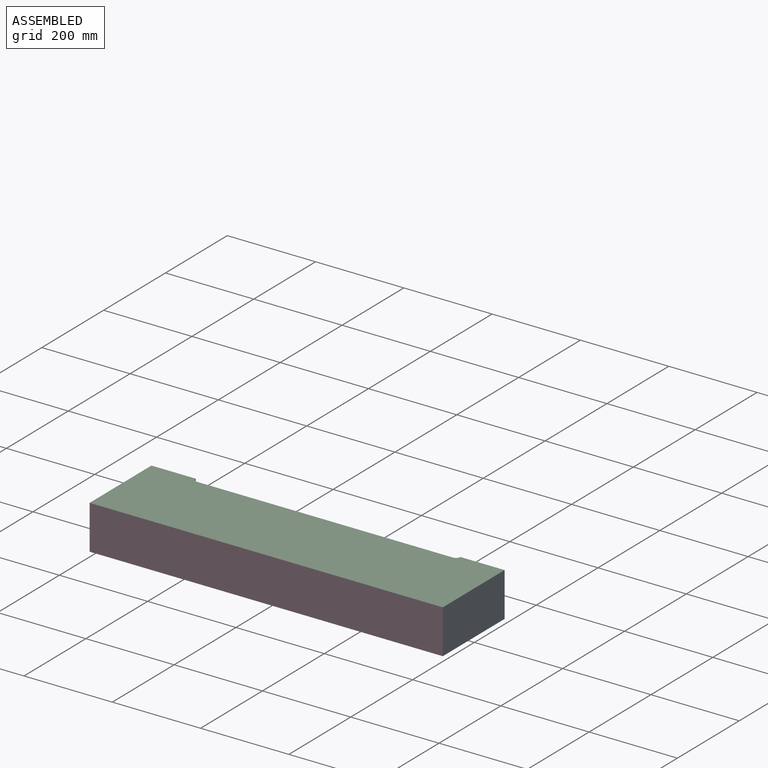
[diagram: assembled view]
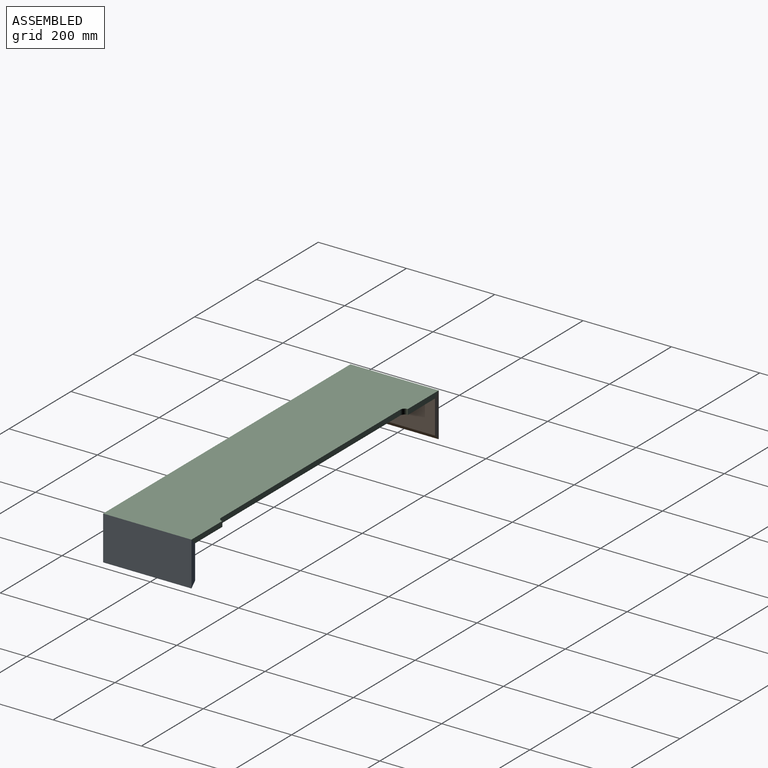
[diagram: assembled view, second angle]
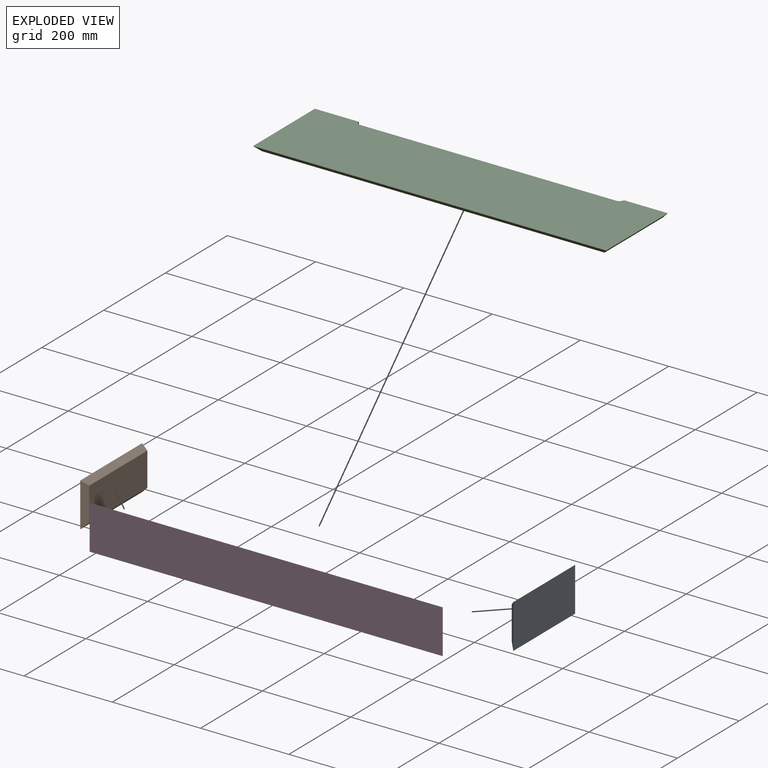
[diagram: exploded view]
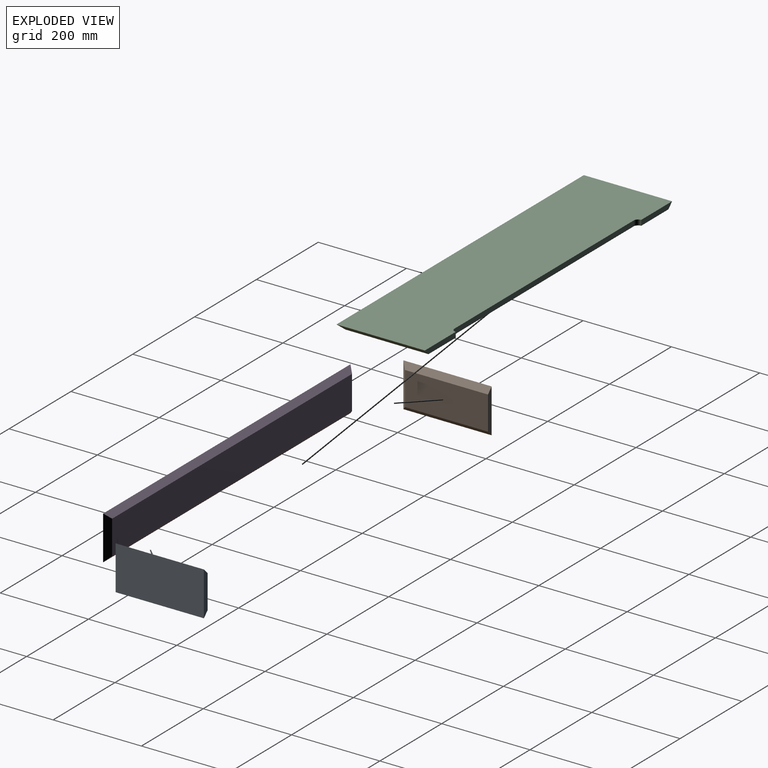
[diagram: exploded view, second angle]
ASSEMBLY  parts=4 mates=3
PART A: 6 faces, bbox 12x200x100 mm
  f0: plane 100x12mm, normal (0,1,0), area 1056mm2, adj f1,f2,f4,f5
  f1: plane 188x76mm, normal (1,0,0), area 14288mm2, adj f0,f3,f4,f5
  f2: plane 200x100mm, normal (-1,0,0), area 20000mm2, adj f0,f3,f4,f5
  f3: plane 100x12mm, normal (0.71,-0.71,0), area 1493.4mm2, adj f1,f2,f4,f5
  f4: plane 200x12mm, normal (0.71,0,0.71), area 3292.3mm2, adj f0,f1,f2,f3
  f5: plane 200x12mm, normal (0.71,0,-0.71), area 3292.3mm2, adj f0,f1,f2,f3
PART B: same geometry as A
PART C: 10 faces, bbox 800x200x12 mm
  f0: plane 100x12mm, normal (0,-1,0), area 1128mm2, adj f1,f2,f6,f9
  f1: plane 800x200mm, normal (0,0,1), area 154042.9mm2, adj f0,f3,f4,f5,f6,f7,f8,f9
  f2: plane 776x188mm, normal (0,0,-1), area 139930.9mm2, adj f0,f3,f4,f5,f6,f7,f8,f9
  f3: plane 100x12mm, normal (0,-1,0), area 1128mm2, adj f1,f2,f5,f8
  f4: plane 800x12mm, normal (0,0.71,-0.71), area 13372.8mm2, adj f1,f2,f5,f6
  f5: plane 200x12mm, normal (-0.71,0,-0.71), area 3292.3mm2, adj f1,f2,f3,f4
  f6: plane 200x12mm, normal (0.71,0,-0.71), area 3292.3mm2, adj f0,f1,f2,f4
  f7: plane 580x12mm, normal (0,-1,0), area 6960mm2, adj f1,f2,f8,f9
  f8: cylinder r=10mm len=12mm, axis (0,0,-1), area 188.5mm2, adj f1,f2,f3,f7
  f9: cylinder r=10mm len=12mm, axis (0,0,1), area 188.5mm2, adj f0,f1,f2,f7
PART D: 6 faces, bbox 800x12x100 mm
  f0: plane 800x100mm, normal (0,-1,0), area 80000mm2, adj f2,f3,f4,f5
  f1: plane 776x76mm, normal (0,1,0), area 58976mm2, adj f2,f3,f4,f5
  f2: plane 100x12mm, normal (-0.71,0.71,0), area 1493.4mm2, adj f0,f1,f4,f5
  f3: plane 100x12mm, normal (0.71,0.71,0), area 1493.4mm2, adj f0,f1,f4,f5
  f4: plane 800x12mm, normal (0,0.71,0.71), area 13372.8mm2, adj f0,f1,f2,f3
  f5: plane 800x12mm, normal (0,0.71,-0.71), area 13372.8mm2, adj f0,f1,f2,f3
PLACE A rot(axis=(0,1,0),180deg) t=(1602.17,-610.98,-154.44)mm
PLACE B t=(802.17,-610.98,-163.48)mm
PLACE C rot(axis=(0,0,-1),180deg) t=(1252.95,-323.01,-120.96)mm
PLACE D rot(axis=(0,1,0),180deg) t=(1187.94,-693.19,-300.27)mm
MATE fastened D.f3 <-> B.f3  axis (-0.71,0.71,0) through (807.89,-699.46,-158.96)mm
MATE fastened C.f4 <-> D.f5  axis (0,-0.71,-0.71) through (1202.17,-699.22,-114.93)mm
MATE fastened D.f2 <-> A.f3  axis (0.71,0.71,0) through (1596.44,-699.46,-158.96)mm
